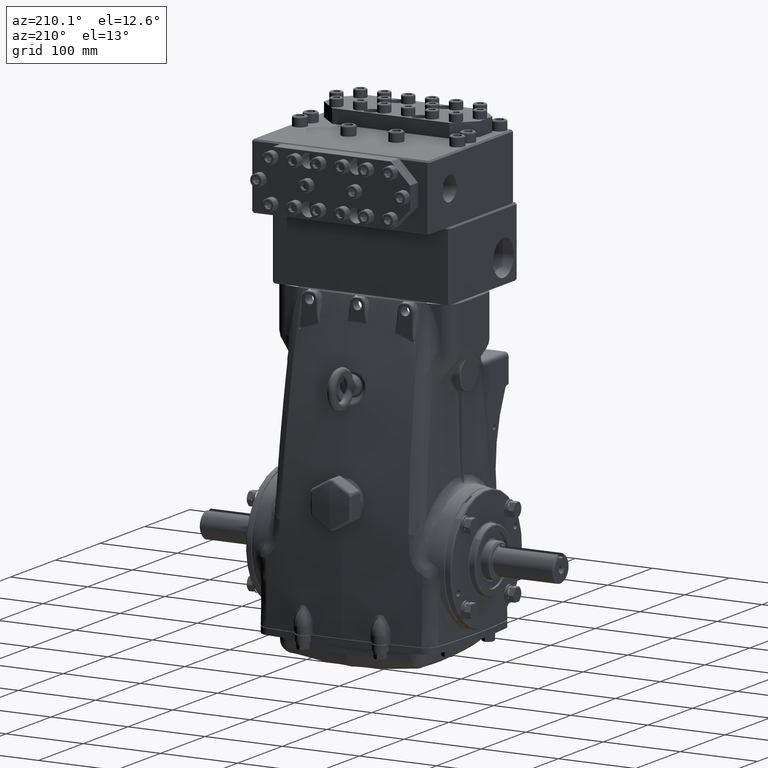
[diagram: clean part render]
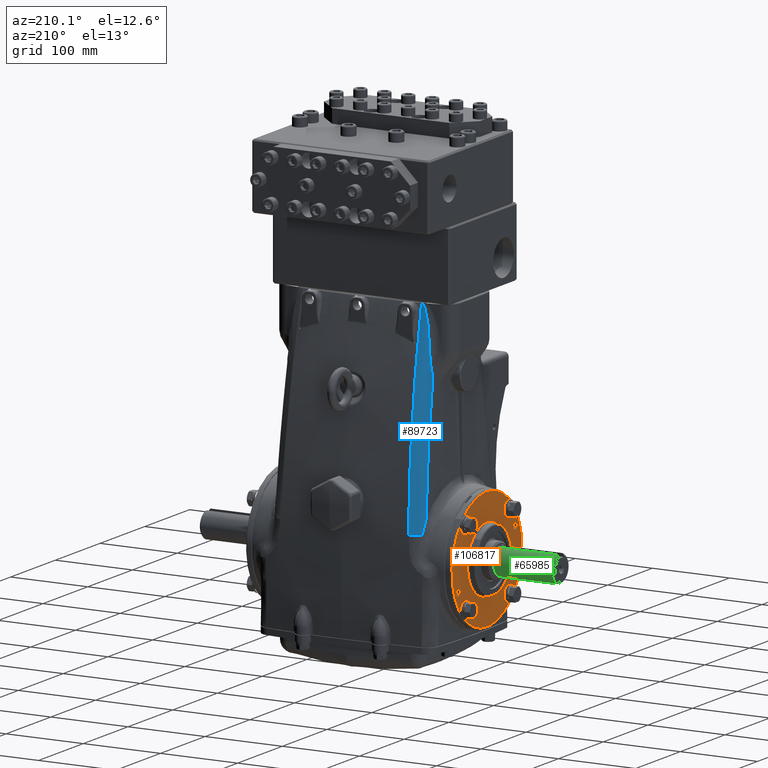
[diagram: same view with three faces highlighted in distinct colors, each labeled with its STEP entity id]
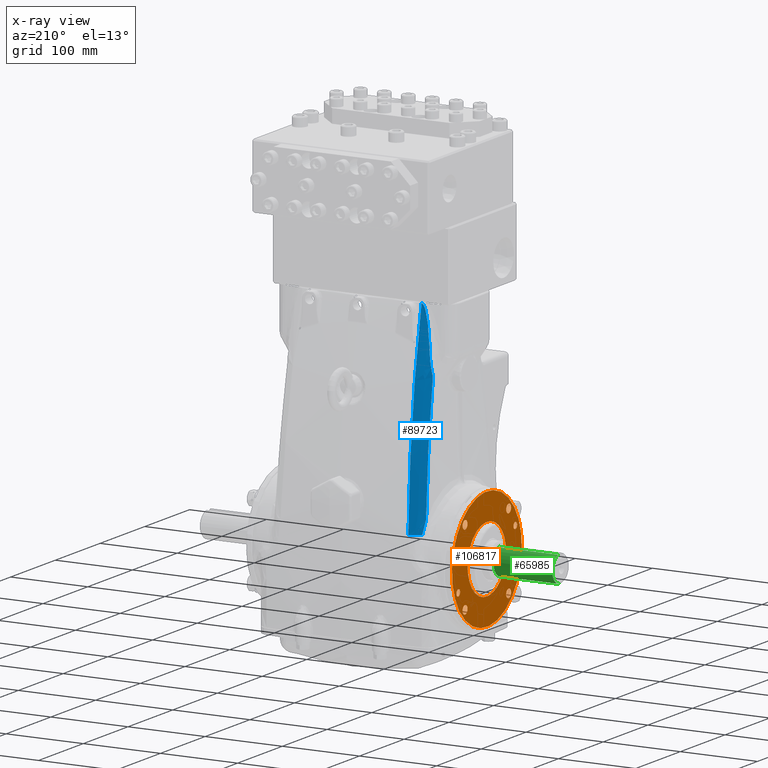
[diagram: x-ray of the same camera — body ghosted, the three highlighted faces saturated]
A machine part, auxiliary view with three faces highlighted in distinct colors.
The next image is the same camera in x-ray (body ghosted, the three faces saturated) — at least one of them is partly hidden behind the body in this view.
Their STEP definitions:

[orange] entity #106817 — the highlighted planar face has unit normal (-1, -0, 0).
#804 = DIRECTION ( 'NONE',  ( 0.0000000000000000000, -0.7071067811865471286, 0.7071067811865477948 ) ) ;
#1506 = CARTESIAN_POINT ( 'NONE',  ( -5.246062992125984259, -4.156730640558441200E-17, 2.958535915340194190E-16 ) ) ;
#2109 = EDGE_CURVE ( 'NONE', #28454, #15340, #17525, .T. ) ;
#2210 = DIRECTION ( 'NONE',  ( -1.000000000000000000, -1.279769191153750031E-16, 9.737501798821864473E-31 ) ) ;
#2635 = CARTESIAN_POINT ( 'NONE',  ( -5.246062992125984259, -1.920880626057946960, -1.920880626057941409 ) ) ;
#2925 = DIRECTION ( 'NONE',  ( 0.0000000000000000000, -0.7071067811865481278, -0.7071067811865469066 ) ) ;
#3266 = CARTESIAN_POINT ( 'NONE',  ( -5.246062992125984259, -1.920880626057946960, -1.920880626057941409 ) ) ;
#3403 = CIRCLE ( 'NONE', #70161, 0.2165354330708661734 ) ;
#3529 = EDGE_CURVE ( 'NONE', #4650, #96536, #28784, .T. ) ;
#4650 = VERTEX_POINT ( 'NONE', #30916 ) ;
#4719 = EDGE_LOOP ( 'NONE', ( #6420, #29071 ) ) ;
#5205 = FACE_BOUND ( 'NONE', #4719, .T. ) ;
#6420 = ORIENTED_EDGE ( 'NONE', *, *, #111992, .T. ) ;
#6918 = CIRCLE ( 'NONE', #73669, 0.2165354330708663400 ) ;
#6955 = EDGE_LOOP ( 'NONE', ( #107050, #95743 ) ) ;
#7168 = CIRCLE ( 'NONE', #73911, 0.2165354330708663400 ) ;
#8872 = CARTESIAN_POINT ( 'NONE',  ( -5.246062992125986035, 2.073994299149522824, 2.073994299149517051 ) ) ;
#8875 = AXIS2_PLACEMENT_3D ( 'NONE', #117281, #35553, #71939 ) ;
#8948 = EDGE_CURVE ( 'NONE', #96536, #4650, #6918, .T. ) ;
#9081 = CARTESIAN_POINT ( 'NONE',  ( -5.246062992125984259, -1.767766952966366878, 2.073994299149521936 ) ) ;
#10647 = CIRCLE ( 'NONE', #77366, 0.1648818897637792658 ) ;
#11830 = DIRECTION ( 'NONE',  ( -1.000000000000000000, -3.748357177353093439E-17, 9.049334734184479589E-17 ) ) ;
#12172 = VERTEX_POINT ( 'NONE', #13431 ) ;
#13431 = CARTESIAN_POINT ( 'NONE',  ( -5.246062992125984259, -2.073994299149522380, -2.073994299149516607 ) ) ;
#14326 = AXIS2_PLACEMENT_3D ( 'NONE', #60149, #96526, #14734 ) ;
#14707 = EDGE_CURVE ( 'NONE', #30645, #97522, #68366, .T. ) ;
#14734 = DIRECTION ( 'NONE',  ( 9.049334734184335376E-17, -0.7071067811865484609, -0.7071067811865465735 ) ) ;
#14987 = CARTESIAN_POINT ( 'NONE',  ( -5.246062992125984259, -2.073994299149517939, 1.767766952966371541 ) ) ;
#15182 = DIRECTION ( 'NONE',  ( 0.0000000000000000000, -0.7071067811865481278, -0.7071067811865469066 ) ) ;
#15340 = VERTEX_POINT ( 'NONE', #99316 ) ;
#16073 = CIRCLE ( 'NONE', #82814, 0.2165354330708661734 ) ;
#16920 = AXIS2_PLACEMENT_3D ( 'NONE', #87697, #33388, #69792 ) ;
#17525 = CIRCLE ( 'NONE', #68984, 1.692913385826771977 ) ;
#18326 = EDGE_LOOP ( 'NONE', ( #73035, #28832 ) ) ;
#19021 = AXIS2_PLACEMENT_3D ( 'NONE', #84001, #2210, #38665 ) ;
#20911 = DIRECTION ( 'NONE',  ( -1.000000000000000000, -1.279769191153750031E-16, 9.737501798821864473E-31 ) ) ;
#22176 = CARTESIAN_POINT ( 'NONE',  ( -5.246062992125986035, 1.920880626057947405, 1.920880626057941853 ) ) ;
#22765 = EDGE_LOOP ( 'NONE', ( #26493, #104686 ) ) ;
#23732 = PLANE ( 'NONE',  #14326 ) ;
#23838 = DIRECTION ( 'NONE',  ( -1.000000000000000000, -1.279769191153750031E-16, 9.737501798821864473E-31 ) ) ;
#24370 = ORIENTED_EDGE ( 'NONE', *, *, #101395, .T. ) ;
#25496 = AXIS2_PLACEMENT_3D ( 'NONE', #105577, #23838, #60260 ) ;
#26493 = ORIENTED_EDGE ( 'NONE', *, *, #81560, .F. ) ;
#28235 = EDGE_CURVE ( 'NONE', #41123, #66631, #107773, .T. ) ;
#28454 = VERTEX_POINT ( 'NONE', #79857 ) ;
#28784 = CIRCLE ( 'NONE', #80265, 0.2165354330708663400 ) ;
#28832 = ORIENTED_EDGE ( 'NONE', *, *, #78271, .F. ) ;
#29071 = ORIENTED_EDGE ( 'NONE', *, *, #2109, .T. ) ;
#29176 = DIRECTION ( 'NONE',  ( 0.0000000000000000000, -0.7071067811865463515, 0.7071067811865487940 ) ) ;
#29509 = CARTESIAN_POINT ( 'NONE',  ( -5.246062992125984259, -1.920880626057942520, 1.920880626057946960 ) ) ;
#30645 = VERTEX_POINT ( 'NONE', #49304 ) ;
#30916 = CARTESIAN_POINT ( 'NONE',  ( -5.246062992125986035, 2.073994299149517051, -1.767766952966372207 ) ) ;
#32688 = FACE_BOUND ( 'NONE', #18326, .T. ) ;
#33178 = VERTEX_POINT ( 'NONE', #14987 ) ;
#33388 = DIRECTION ( 'NONE',  ( -1.000000000000000000, -3.748357177353093439E-17, 9.049334734184479589E-17 ) ) ;
#35553 = DIRECTION ( 'NONE',  ( 1.000000000000000000, 1.279769191153750031E-16, -9.737501798821864473E-31 ) ) ;
#36031 = DIRECTION ( 'NONE',  ( 1.000000000000000000, 1.279769191153750031E-16, -9.737501798821864473E-31 ) ) ;
#37826 = ORIENTED_EDGE ( 'NONE', *, *, #3529, .F. ) ;
#37953 = DIRECTION ( 'NONE',  ( -1.000000000000000000, -1.279769191153750031E-16, 9.737501798821864473E-31 ) ) ;
#38665 = DIRECTION ( 'NONE',  ( 0.0000000000000000000, -0.7071067811865484609, -0.7071067811865465735 ) ) ;
#39088 = DIRECTION ( 'NONE',  ( -1.000000000000000000, -1.279769191153750031E-16, 9.737501798821864473E-31 ) ) ;
#39706 = DIRECTION ( 'NONE',  ( -1.000000000000000000, -1.279769191153750031E-16, 9.737501798821864473E-31 ) ) ;
#40826 = AXIS2_PLACEMENT_3D ( 'NONE', #3266, #39706, #76088 ) ;
#41123 = VERTEX_POINT ( 'NONE', #47963 ) ;
#41642 = FACE_BOUND ( 'NONE', #107563, .T. ) ;
#42494 = VERTEX_POINT ( 'NONE', #99110 ) ;
#44412 = AXIS2_PLACEMENT_3D ( 'NONE', #1506, #37953, #74334 ) ;
#46161 = CARTESIAN_POINT ( 'NONE',  ( -5.246062992125984259, -2.509751485955854733, 1.039573103668955278 ) ) ;
#47963 = CARTESIAN_POINT ( 'NONE',  ( -5.246062992125984259, -2.626340588302675805, 1.156162206015776350 ) ) ;
#48253 = DIRECTION ( 'NONE',  ( 0.0000000000000000000, -0.7071067811865471286, 0.7071067811865477948 ) ) ;
#48297 = CARTESIAN_POINT ( 'NONE',  ( -5.246062992125984259, -1.920880626057942520, 1.920880626057946960 ) ) ;
#49232 = AXIS2_PLACEMENT_3D ( 'NONE', #74531, #110915, #29176 ) ;
#49304 = CARTESIAN_POINT ( 'NONE',  ( -5.246062992125986035, 2.626340588302674917, -1.156162206015776128 ) ) ;
#51384 = VERTEX_POINT ( 'NONE', #103632 ) ;
#51757 = EDGE_CURVE ( 'NONE', #12172, #51384, #16073, .T. ) ;
#53010 = ORIENTED_EDGE ( 'NONE', *, *, #61429, .T. ) ;
#56357 = AXIS2_PLACEMENT_3D ( 'NONE', #93624, #11830, #48253 ) ;
#57332 = DIRECTION ( 'NONE',  ( 0.0000000000000000000, -0.7071067811865481278, -0.7071067811865469066 ) ) ;
#58606 = DIRECTION ( 'NONE',  ( -1.000000000000000000, -1.279769191153750031E-16, 9.737501798821864473E-31 ) ) ;
#59359 = AXIS2_PLACEMENT_3D ( 'NONE', #48297, #84727, #2925 ) ;
#60149 = CARTESIAN_POINT ( 'NONE',  ( -5.246062992125984259, 1.141392835773562764, 1.141392835773559877 ) ) ;
#60260 = DIRECTION ( 'NONE',  ( 0.0000000000000000000, -0.7071067811865486830, -0.7071067811865461294 ) ) ;
#60377 = CIRCLE ( 'NONE', #8875, 1.692913385826771977 ) ;
#60587 = CARTESIAN_POINT ( 'NONE',  ( -5.246062992125986035, 1.920880626057941409, -1.920880626057947405 ) ) ;
#60666 = CARTESIAN_POINT ( 'NONE',  ( -5.246062992125984259, -2.393162383609034105, 0.9229840013221340955 ) ) ;
#61429 = EDGE_CURVE ( 'NONE', #76835, #93587, #70528, .T. ) ;
#65933 = DIRECTION ( 'NONE',  ( -1.000000000000000000, -1.279769191153750031E-16, 9.737501798821864473E-31 ) ) ;
#66631 = VERTEX_POINT ( 'NONE', #60666 ) ;
#68161 = CARTESIAN_POINT ( 'NONE',  ( -5.246062992125986035, 1.767766952966365768, -2.073994299149522824 ) ) ;
#68366 = CIRCLE ( 'NONE', #16920, 0.1648818897637790437 ) ;
#68984 = AXIS2_PLACEMENT_3D ( 'NONE', #117767, #36031, #72424 ) ;
#69092 = FACE_BOUND ( 'NONE', #6955, .T. ) ;
#69238 = ORIENTED_EDGE ( 'NONE', *, *, #8948, .F. ) ;
#69792 = DIRECTION ( 'NONE',  ( 0.0000000000000000000, -0.7071067811865463515, 0.7071067811865487940 ) ) ;
#70161 = AXIS2_PLACEMENT_3D ( 'NONE', #22176, #58606, #94974 ) ;
#70528 = CIRCLE ( 'NONE', #19021, 3.070866141732283339 ) ;
#71939 = DIRECTION ( 'NONE',  ( 0.0000000000000000000, -0.7071067811865485719, -0.7071067811865465735 ) ) ;
#72424 = DIRECTION ( 'NONE',  ( 0.0000000000000000000, -0.7071067811865485719, -0.7071067811865465735 ) ) ;
#73035 = ORIENTED_EDGE ( 'NONE', *, *, #51757, .F. ) ;
#73669 = AXIS2_PLACEMENT_3D ( 'NONE', #60587, #96975, #15182 ) ;
#73911 = AXIS2_PLACEMENT_3D ( 'NONE', #29509, #65933, #102336 ) ;
#74334 = DIRECTION ( 'NONE',  ( 0.0000000000000000000, -0.7071067811865484609, -0.7071067811865465735 ) ) ;
#74356 = CARTESIAN_POINT ( 'NONE',  ( -5.246062992125984259, -2.171430272935070072, -2.171430272935063854 ) ) ;
#74531 = CARTESIAN_POINT ( 'NONE',  ( -5.246062992125986035, 2.509751485955853845, -1.039573103668955056 ) ) ;
#75464 = DIRECTION ( 'NONE',  ( 0.0000000000000000000, -0.7071067811865486830, -0.7071067811865461294 ) ) ;
#76088 = DIRECTION ( 'NONE',  ( 0.0000000000000000000, -0.7071067811865486830, -0.7071067811865461294 ) ) ;
#76455 = VERTEX_POINT ( 'NONE', #9081 ) ;
#76835 = VERTEX_POINT ( 'NONE', #108628 ) ;
#76923 = CIRCLE ( 'NONE', #25496, 0.2165354330708661734 ) ;
#77366 = AXIS2_PLACEMENT_3D ( 'NONE', #46161, #82593, #804 ) ;
#77631 = EDGE_CURVE ( 'NONE', #97991, #42494, #76923, .T. ) ;
#78030 = FACE_BOUND ( 'NONE', #86134, .T. ) ;
#78271 = EDGE_CURVE ( 'NONE', #51384, #12172, #92272, .T. ) ;
#79857 = CARTESIAN_POINT ( 'NONE',  ( -5.246062992125984259, 1.197070535079590048, 1.197070535079587383 ) ) ;
#80265 = AXIS2_PLACEMENT_3D ( 'NONE', #102677, #20911, #57332 ) ;
#80626 = CIRCLE ( 'NONE', #44412, 3.070866141732283339 ) ;
#81560 = EDGE_CURVE ( 'NONE', #33178, #76455, #110796, .T. ) ;
#81634 = ORIENTED_EDGE ( 'NONE', *, *, #28235, .F. ) ;
#82593 = DIRECTION ( 'NONE',  ( -1.000000000000000000, -3.748357177353093439E-17, 9.049334734184479589E-17 ) ) ;
#82814 = AXIS2_PLACEMENT_3D ( 'NONE', #2635, #39088, #75464 ) ;
#83594 = EDGE_LOOP ( 'NONE', ( #69238, #37826 ) ) ;
#84001 = CARTESIAN_POINT ( 'NONE',  ( -5.246062992125984259, -4.156730640558441200E-17, 2.958535915340194190E-16 ) ) ;
#84086 = EDGE_LOOP ( 'NONE', ( #24370, #53010 ) ) ;
#84727 = DIRECTION ( 'NONE',  ( -1.000000000000000000, -1.279769191153750031E-16, 9.737501798821864473E-31 ) ) ;
#86134 = EDGE_LOOP ( 'NONE', ( #97871, #115158 ) ) ;
#86994 = FACE_OUTER_BOUND ( 'NONE', #84086, .T. ) ;
#87697 = CARTESIAN_POINT ( 'NONE',  ( -5.246062992125986035, 2.509751485955853845, -1.039573103668955056 ) ) ;
#88922 = ORIENTED_EDGE ( 'NONE', *, *, #89591, .F. ) ;
#89591 = EDGE_CURVE ( 'NONE', #66631, #41123, #10647, .T. ) ;
#92272 = CIRCLE ( 'NONE', #40826, 0.2165354330708661734 ) ;
#93587 = VERTEX_POINT ( 'NONE', #74356 ) ;
#93624 = CARTESIAN_POINT ( 'NONE',  ( -5.246062992125984259, -2.509751485955854733, 1.039573103668955278 ) ) ;
#94974 = DIRECTION ( 'NONE',  ( 0.0000000000000000000, -0.7071067811865486830, -0.7071067811865461294 ) ) ;
#95338 = EDGE_CURVE ( 'NONE', #97522, #30645, #100725, .T. ) ;
#95743 = ORIENTED_EDGE ( 'NONE', *, *, #77631, .F. ) ;
#96526 = DIRECTION ( 'NONE',  ( -1.000000000000000000, -1.279769191153749784E-16, 1.010728034814421376E-30 ) ) ;
#96536 = VERTEX_POINT ( 'NONE', #68161 ) ;
#96975 = DIRECTION ( 'NONE',  ( -1.000000000000000000, -1.279769191153750031E-16, 9.737501798821864473E-31 ) ) ;
#97522 = VERTEX_POINT ( 'NONE', #113510 ) ;
#97871 = ORIENTED_EDGE ( 'NONE', *, *, #95338, .F. ) ;
#97991 = VERTEX_POINT ( 'NONE', #8872 ) ;
#99110 = CARTESIAN_POINT ( 'NONE',  ( -5.246062992125986035, 1.767766952966371985, 1.767766952966366878 ) ) ;
#99316 = CARTESIAN_POINT ( 'NONE',  ( -5.246062992125984259, -1.197070535079590270, -1.197070535079586717 ) ) ;
#100725 = CIRCLE ( 'NONE', #49232, 0.1648818897637790437 ) ;
#101395 = EDGE_CURVE ( 'NONE', #93587, #76835, #80626, .T. ) ;
#102336 = DIRECTION ( 'NONE',  ( 0.0000000000000000000, -0.7071067811865481278, -0.7071067811865469066 ) ) ;
#102677 = CARTESIAN_POINT ( 'NONE',  ( -5.246062992125986035, 1.920880626057941409, -1.920880626057947405 ) ) ;
#103632 = CARTESIAN_POINT ( 'NONE',  ( -5.246062992125984259, -1.767766952966371319, -1.767766952966366434 ) ) ;
#104686 = ORIENTED_EDGE ( 'NONE', *, *, #113269, .F. ) ;
#105467 = FACE_BOUND ( 'NONE', #22765, .T. ) ;
#105577 = CARTESIAN_POINT ( 'NONE',  ( -5.246062992125986035, 1.920880626057947405, 1.920880626057941853 ) ) ;
#106817 = ADVANCED_FACE ( 'NONE', ( #86994, #5205, #41642, #78030, #114417, #32688, #69092, #105467 ), #23732, .T. ) ;
#107050 = ORIENTED_EDGE ( 'NONE', *, *, #113660, .F. ) ;
#107563 = EDGE_LOOP ( 'NONE', ( #81634, #88922 ) ) ;
#107773 = CIRCLE ( 'NONE', #56357, 0.1648818897637792658 ) ;
#108628 = CARTESIAN_POINT ( 'NONE',  ( -5.246062992125984259, 2.171430272935069627, 2.171430272935065187 ) ) ;
#110796 = CIRCLE ( 'NONE', #59359, 0.2165354330708663400 ) ;
#110915 = DIRECTION ( 'NONE',  ( -1.000000000000000000, -3.748357177353093439E-17, 9.049334734184479589E-17 ) ) ;
#111992 = EDGE_CURVE ( 'NONE', #15340, #28454, #60377, .T. ) ;
#113269 = EDGE_CURVE ( 'NONE', #76455, #33178, #7168, .T. ) ;
#113510 = CARTESIAN_POINT ( 'NONE',  ( -5.246062992125986035, 2.393162383609033217, -0.9229840013221337625 ) ) ;
#113660 = EDGE_CURVE ( 'NONE', #42494, #97991, #3403, .T. ) ;
#114417 = FACE_BOUND ( 'NONE', #83594, .T. ) ;
#115158 = ORIENTED_EDGE ( 'NONE', *, *, #14707, .F. ) ;
#117281 = CARTESIAN_POINT ( 'NONE',  ( -5.246062992125984259, -4.156730640558441200E-17, 2.958535915340194190E-16 ) ) ;
#117767 = CARTESIAN_POINT ( 'NONE',  ( -5.246062992125984259, -4.156730640558441200E-17, 2.958535915340194190E-16 ) ) ;

[blue] entity #89723 — the highlighted face is a freeform B-spline surface patch.
#354 = CARTESIAN_POINT ( 'NONE',  ( -3.801213099687899444, 2.841866375676329604, 2.709332421064478247 ) ) ;
#3129 = CARTESIAN_POINT ( 'NONE',  ( -3.047062988844523534, 1.942112879583546281, 11.75850216152274363 ) ) ;
#3709 = CARTESIAN_POINT ( 'NONE',  ( -3.624739795667941245, 2.361846785260556025, 9.657226260257358419 ) ) ;
#4317 = CARTESIAN_POINT ( 'NONE',  ( -3.733375874080055556, 2.496822600370382617, 5.768929328260283818 ) ) ;
#4568 = CARTESIAN_POINT ( 'NONE',  ( -3.644514689806643393, 2.131245168979943649, 8.848770191558882559 ) ) ;
#4897 = CARTESIAN_POINT ( 'NONE',  ( -3.269204732900452104, 3.494166244084205619, 1.549803905489430367 ) ) ;
#5416 = CARTESIAN_POINT ( 'NONE',  ( -3.425113512321849463, 2.026531792189807835, 10.72117684414497951 ) ) ;
#6006 = CARTESIAN_POINT ( 'NONE',  ( -3.144611588856334183, 1.953722050217701511, 11.64100215362414659 ) ) ;
#6746 = CARTESIAN_POINT ( 'NONE',  ( -3.216296056407198733, 3.322383220422969519, 3.684119343499719257 ) ) ;
#8913 = B_SPLINE_CURVE_WITH_KNOTS ( 'NONE', 3,
 ( #38625, #75008, #111387, #29631 ),
 .UNSPECIFIED., .F., .F.,
 ( 4, 4 ),
 ( 0.0000000000000000000, 0.001285064076274404152 ),
 .UNSPECIFIED. ) ;
#9279 = CARTESIAN_POINT ( 'NONE',  ( -3.753557971363301160, 2.623800068678024289, 4.808583868586544519 ) ) ;
#11904 = CARTESIAN_POINT ( 'NONE',  ( -3.814269082362508279, 2.881727563546267135, 2.183157301090169256 ) ) ;
#12661 = CARTESIAN_POINT ( 'NONE',  ( -3.617881291539023714, 2.273791004135345517, 10.07883757417355319 ) ) ;
#13241 = CARTESIAN_POINT ( 'NONE',  ( -3.724749659922824474, 2.436103823054936335, 6.191136171432662039 ) ) ;
#13499 = CARTESIAN_POINT ( 'NONE',  ( -3.676183625752012851, 2.074507989343169712, 8.534897784484202887 ) ) ;
#13828 = CARTESIAN_POINT ( 'NONE',  ( -3.246661546152605826, 3.440174841299046271, 2.409381110722794705 ) ) ;
#14097 = CARTESIAN_POINT ( 'NONE',  ( -3.269204732900450772, 3.494166244084205619, 1.549803905489431921 ) ) ;
#14352 = CARTESIAN_POINT ( 'NONE',  ( -3.475132884461884952, 2.056109810165644536, 10.39221283459856338 ) ) ;
#14534 = EDGE_CURVE ( 'NONE', #79535, #51367, #106567, .T. ) ;
#14952 = CARTESIAN_POINT ( 'NONE',  ( -3.196248785558728489, 1.957521553395842551, 11.56183124994849543 ) ) ;
#14991 = CARTESIAN_POINT ( 'NONE',  ( -3.542766596368535748, 2.108245540889408076, 9.814064409686812596 ) ) ;
#15019 = VERTEX_POINT ( 'NONE', #14097 ) ;
#15712 = CARTESIAN_POINT ( 'NONE',  ( -3.257994996955968503, 3.467318692098095845, 1.977233875776326810 ) ) ;
#16303 = CARTESIAN_POINT ( 'NONE',  ( -3.057369498427757737, 2.057451332273736444, 11.28228488240600136 ) ) ;
#18254 = CARTESIAN_POINT ( 'NONE',  ( -3.700236916683070199, 2.241993115511200063, 7.419026472001160499 ) ) ;
#19687 = ORIENTED_EDGE ( 'NONE', *, *, #110279, .F. ) ;
#20889 = CARTESIAN_POINT ( 'NONE',  ( -3.792405264419058231, 3.064612692970520857, 1.764133578097811794 ) ) ;
#21650 = CARTESIAN_POINT ( 'NONE',  ( -3.604048377092111455, 2.088550987447082452, 10.91983584963829834 ) ) ;
#21933 = ORIENTED_EDGE ( 'NONE', *, *, #71973, .F. ) ;
#22238 = CARTESIAN_POINT ( 'NONE',  ( -3.699400011502169239, 2.239784669858119859, 7.455433125177638232 ) ) ;
#22500 = EDGE_CURVE ( 'NONE', #42635, #28937, #36317, .T. ) ;
#22818 = CARTESIAN_POINT ( 'NONE',  ( -3.225786521989106870, 3.367115606732822730, 3.268402680746357980 ) ) ;
#23083 = CARTESIAN_POINT ( 'NONE',  ( -3.580799902365598086, 2.142989470956519593, 9.407484235152326235 ) ) ;
#23361 = CARTESIAN_POINT ( 'NONE',  ( -3.542766596368535748, 2.108245540889408076, 9.814064409686812596 ) ) ;
#23954 = CARTESIAN_POINT ( 'NONE',  ( -3.247854053815110387, 1.965231277512680785, 11.44703742217719089 ) ) ;
#23991 = CARTESIAN_POINT ( 'NONE',  ( -3.576149117424309853, 2.139323488232271586, 9.457729532381188520 ) ) ;
#24546 = CARTESIAN_POINT ( 'NONE',  ( -3.058952848731955498, 1.955623167342798618, 11.69858645062687863 ) ) ;
#24860 = DIRECTION ( 'NONE',  ( -0.02584747050126739651, 0.06270016655278089213, -0.9976976482797480505 ) ) ;
#25299 = CARTESIAN_POINT ( 'NONE',  ( -3.091790677973859314, 2.424351262851354605, 9.608981028187290718 ) ) ;
#28937 = VERTEX_POINT ( 'NONE', #112408 ) ;
#29197 = VERTEX_POINT ( 'NONE', #31707 ) ;
#29631 = CARTESIAN_POINT ( 'NONE',  ( -3.576149117424309853, 2.139323488232271586, 9.457729532381188520 ) ) ;
#30606 = CARTESIAN_POINT ( 'NONE',  ( -3.597071034874167683, 1.991304745253442698, 11.33939218619141975 ) ) ;
#31196 = CARTESIAN_POINT ( 'NONE',  ( -3.683218887657213170, 2.090051777215203632, 8.295105779658376477 ) ) ;
#31707 = CARTESIAN_POINT ( 'NONE',  ( -3.576149117424309853, 2.139323488232271586, 9.457729532381188520 ) ) ;
#31785 = CARTESIAN_POINT ( 'NONE',  ( -3.196430448770180011, 3.229208018188942653, 4.553310141910483999 ) ) ;
#31813 =( BOUNDED_SURFACE ( )  B_SPLINE_SURFACE ( 3, 2, ( 
 ( #3129, #39578, #75956 ),
 ( #112341, #30606, #67021 ),
 ( #103408, #21650, #58068 ),
 ( #94452, #12661, #49086 ),
 ( #85506, #3709, #40166 ),
 ( #76552, #112928, #31196 ),
 ( #67603, #103997, #22238 ),
 ( #58660, #95031, #13241 ),
 ( #49667, #86096, #4317 ),
 ( #40753, #77128, #113511 ),
 ( #31785, #68181, #104568 ),
 ( #22818, #59241, #95624 ),
 ( #13828, #50267, #86677 ),
 ( #4897, #41340, #77723 ) ),
 .UNSPECIFIED., .F., .F., .F. ) 
 B_SPLINE_SURFACE_WITH_KNOTS ( ( 4, 2, 2, 2, 2, 2, 4 ),
 ( 3, 3 ),
 ( 0.3419978113029756850, 0.3744830089578065069, 0.4069682066126373288, 0.4719386019222990281, 0.5044237995771299055, 0.5369089972319607273, 0.6018793925416223711 ),
 ( 0.0000000000000000000, 1.000000000000000000 ),
 .UNSPECIFIED. ) 
 GEOMETRIC_REPRESENTATION_ITEM ( )  RATIONAL_B_SPLINE_SURFACE ( (
 ( 1.000000000000000000, 0.7560130559632651792, 1.000000000000000000),
 ( 1.000000000000000000, 0.7571492924045932771, 1.000000000000000000),
 ( 1.000000000000000000, 0.7582354962214225003, 1.000000000000000000),
 ( 1.000000000000000000, 0.7603087553690203171, 1.000000000000000000),
 ( 1.000000000000000000, 0.7612961270030141891, 1.000000000000000000),
 ( 1.000000000000000000, 0.7641083035491569309, 1.000000000000000000),
 ( 1.000000000000000000, 0.7657817902121620834, 1.000000000000000000),
 ( 1.000000000000000000, 0.7679959464944710046, 1.000000000000000000),
 ( 1.000000000000000000, 0.7686845463808132939, 1.000000000000000000),
 ( 1.000000000000000000, 0.7699625865603482167, 1.000000000000000000),
 ( 1.000000000000000000, 0.7705521760810135623, 1.000000000000000000),
 ( 1.000000000000000000, 0.7721734963203804591, 1.000000000000000000),
 ( 1.000000000000000000, 0.7730579457102991769, 1.000000000000000000),
 ( 1.000000000000000000, 0.7737454532319997247, 1.000000000000000000) ) ) 
 REPRESENTATION_ITEM ( '' )  SURFACE ( )  );
#32039 = CARTESIAN_POINT ( 'NONE',  ( -3.611175073036743566, 2.149335404892715129, 9.127704501144831895 ) ) ;
#32914 = CARTESIAN_POINT ( 'NONE',  ( -3.323539555675845136, 1.984003420254962569, 11.20907162170097315 ) ) ;
#33219 = ORIENTED_EDGE ( 'NONE', *, *, #35995, .F. ) ;
#33503 = CARTESIAN_POINT ( 'NONE',  ( -3.098228102935181472, 1.953479448419664699, 11.68356088856600650 ) ) ;
#33907 = ORIENTED_EDGE ( 'NONE', *, *, #96592, .T. ) ;
#34256 = CARTESIAN_POINT ( 'NONE',  ( -3.160157785945038711, 3.011595640940678997, 6.234294448528373778 ) ) ;
#35995 = EDGE_CURVE ( 'NONE', #15019, #28937, #70531, .T. ) ;
#36013 = B_SPLINE_CURVE_WITH_KNOTS ( 'NONE', 3,
 ( #95297, #13499, #49932, #86352, #4568, #40999, #77387, #113774, #32039, #68434, #104829, #23083 ),
 .UNSPECIFIED., .F., .F.,
 ( 4, 2, 2, 2, 2, 4 ),
 ( 0.0000000000000000000, 0.006105293281051692687, 0.01221058656210338537, 0.01526323320262923389, 0.01831587984315508413, 0.02442117312420670483 ),
 .UNSPECIFIED. ) ;
#36317 = B_SPLINE_CURVE_WITH_KNOTS ( 'NONE', 3,
 ( #23361, #59781, #96156, #14352, #50801, #87217, #5416, #41857, #78250, #114637, #32914, #69317, #105687, #23954, #60370, #96750, #14952, #51399, #87811, #6006, #42463, #78852, #115233, #33503, #69912, #106269, #24546, #60944 ),
 .UNSPECIFIED., .F., .F.,
 ( 4, 2, 2, 2, 2, 2, 2, 2, 2, 2, 2, 2, 2, 4 ),
 ( 0.0000000000000000000, 0.01272267982654311930, 0.01908401973981459221, 0.02544535965308606512, 0.03180669956635753803, 0.03816803947962901095, 0.04134870943626467454, 0.04452937939290033814, 0.04611971437121817341, 0.04771004934953601562, 0.04850521683869494366, 0.04930038432785386476, 0.05009555181701278587, 0.05089071930617170003 ),
 .UNSPECIFIED. ) ;
#36797 = CARTESIAN_POINT ( 'NONE',  ( -3.814269082362508279, 2.881727563546267135, 2.183157301090169256 ) ) ;
#38625 = CARTESIAN_POINT ( 'NONE',  ( -3.580799902365598086, 2.142989470956519593, 9.407484235152326235 ) ) ;
#39578 = CARTESIAN_POINT ( 'NONE',  ( -3.589918111933611211, 1.889644707873581631, 11.75727767587871853 ) ) ;
#39795 = CARTESIAN_POINT ( 'NONE',  ( -3.814269082362508279, 2.881727563546267135, 2.183157301090169256 ) ) ;
#40166 = CARTESIAN_POINT ( 'NONE',  ( -3.658804494557767573, 1.837281659631256669, 9.549821321188925793 ) ) ;
#40753 = CARTESIAN_POINT ( 'NONE',  ( -3.186966253152299089, 3.178518602334162946, 4.981063251276674819 ) ) ;
#40999 = CARTESIAN_POINT ( 'NONE',  ( -3.630274747985410499, 2.141864256455619397, 8.967991098027294328 ) ) ;
#41340 = CARTESIAN_POINT ( 'NONE',  ( -3.781998062819874828, 3.439989269677553807, 1.559684158456561720 ) ) ;
#41857 = CARTESIAN_POINT ( 'NONE',  ( -3.395550305680832714, 2.012001240785476153, 10.88484654828793019 ) ) ;
#42463 = CARTESIAN_POINT ( 'NONE',  ( -3.137753295990094227, 1.953489988434667923, 11.64905505856249945 ) ) ;
#42635 = VERTEX_POINT ( 'NONE', #93655 ) ;
#43202 = CARTESIAN_POINT ( 'NONE',  ( -3.196827980763150112, 3.231218854497723392, 4.535599982320241530 ) ) ;
#45710 = CARTESIAN_POINT ( 'NONE',  ( -3.764946817707797155, 2.685616327955809624, 4.284649282652233104 ) ) ;
#48495 = FACE_OUTER_BOUND ( 'NONE', #109711, .T. ) ;
#48663 = CIRCLE ( 'NONE', #115382, 0.6299212598425197873 ) ;
#49086 = CARTESIAN_POINT ( 'NONE',  ( -3.650641123888094697, 1.748344757290344109, 9.967172917615114258 ) ) ;
#49667 = CARTESIAN_POINT ( 'NONE',  ( -3.168538870737483748, 3.067713329856495807, 5.835469309587299591 ) ) ;
#49932 = CARTESIAN_POINT ( 'NONE',  ( -3.669592097120425223, 2.092360205566928588, 8.612894015470624609 ) ) ;
#50267 = CARTESIAN_POINT ( 'NONE',  ( -3.760632177187649638, 3.386144853829423873, 2.418613819507564155 ) ) ;
#50801 = CARTESIAN_POINT ( 'NONE',  ( -3.463598773325417657, 2.048677792663028185, 10.47456393592918467 ) ) ;
#51367 = VERTEX_POINT ( 'NONE', #39795 ) ;
#51399 = CARTESIAN_POINT ( 'NONE',  ( -3.175331520119966999, 1.955497972035430410, 11.59829125815897122 ) ) ;
#52153 = CARTESIAN_POINT ( 'NONE',  ( -3.247199614774384013, 3.435775041202732805, 2.404314508298649233 ) ) ;
#52760 = CARTESIAN_POINT ( 'NONE',  ( -3.048361850561355890, 1.956657500317994680, 11.69856850100573276 ) ) ;
#54711 = CARTESIAN_POINT ( 'NONE',  ( -3.720962081858113724, 2.409200364965605079, 6.377039946395764325 ) ) ;
#55834 = CARTESIAN_POINT ( 'NONE',  ( -3.580799902365598086, 2.142989470956519593, 9.407484235152326235 ) ) ;
#57311 = CARTESIAN_POINT ( 'NONE',  ( -3.807797924443275583, 2.977543044408082817, 1.978319764446337281 ) ) ;
#58068 = CARTESIAN_POINT ( 'NONE',  ( -3.634034561642262684, 1.561231582636855686, 10.79967266109354540 ) ) ;
#58660 = CARTESIAN_POINT ( 'NONE',  ( -3.159573981068620085, 3.007584296943471625, 6.262205731746902870 ) ) ;
#59241 = CARTESIAN_POINT ( 'NONE',  ( -3.741269416928316716, 3.313199642596796668, 3.276727043862713185 ) ) ;
#59781 = CARTESIAN_POINT ( 'NONE',  ( -3.526110223087379758, 2.093381093767648693, 9.979598701209544842 ) ) ;
#60370 = CARTESIAN_POINT ( 'NONE',  ( -3.232443174415196019, 1.962397510778287391, 11.48619949557370568 ) ) ;
#60410 = CARTESIAN_POINT ( 'NONE',  ( -3.565811391544678965, 2.129228831142555123, 9.576604896241546427 ) ) ;
#60944 = CARTESIAN_POINT ( 'NONE',  ( -3.048361850561355890, 1.956657500317994680, 11.69856850100573276 ) ) ;
#61268 = DIRECTION ( 'NONE',  ( 0.0000000000000000000, 0.9980310921419518477, 0.06272112178479140321 ) ) ;
#61702 = CARTESIAN_POINT ( 'NONE',  ( -3.083322352733954830, 2.337157510713007369, 10.02836769579707266 ) ) ;
#62346 = CARTESIAN_POINT ( 'NONE',  ( -3.770580920303959083, 3.142302170779629922, 1.540680269885116749 ) ) ;
#63644 = CARTESIAN_POINT ( 'NONE',  ( -3.680044730410442888, 2.053194663346450621, 8.457199941519622399 ) ) ;
#66273 = CARTESIAN_POINT ( 'NONE',  ( -3.770580920303959083, 3.142302170779629922, 1.540680269885116749 ) ) ;
#67021 = CARTESIAN_POINT ( 'NONE',  ( -3.625590179549488479, 1.463042293424011708, 11.21488468228997881 ) ) ;
#67603 = CARTESIAN_POINT ( 'NONE',  ( -3.133196056143836117, 2.813169425873078389, 7.540067853943227760 ) ) ;
#68181 = CARTESIAN_POINT ( 'NONE',  ( -3.714694376460200065, 3.175668598951369326, 4.558885180942064075 ) ) ;
#68434 = CARTESIAN_POINT ( 'NONE',  ( -3.597355062208697163, 2.150247036588929905, 9.247534800881268779 ) ) ;
#69317 = CARTESIAN_POINT ( 'NONE',  ( -3.288433655448587345, 1.974316455701514039, 11.32870975276895820 ) ) ;
#69912 = CARTESIAN_POINT ( 'NONE',  ( -3.089106361407769175, 1.953774575474547914, 11.68886016557627094 ) ) ;
#70531 = B_SPLINE_CURVE_WITH_KNOTS ( 'NONE', 3,
 ( #97502, #15712, #52153, #88551, #6746, #43202, #79606, #115990, #34256, #70657, #107015, #25299, #61702, #98099, #16303, #52760 ),
 .UNSPECIFIED., .F., .F.,
 ( 4, 2, 2, 2, 2, 2, 2, 4 ),
 ( 0.0000000000000000000, 0.03264243258107458329, 0.06528486516214915270, 0.09792729774322372904, 0.1305697303242982776, 0.1958545954864474858, 0.2284970280675220899, 0.2611394606485967218 ),
 .UNSPECIFIED. ) ;
#70657 = CARTESIAN_POINT ( 'NONE',  ( -3.133913998702548387, 2.819013614672498669, 7.504584520848139206 ) ) ;
#71973 = EDGE_CURVE ( 'NONE', #89794, #51367, #113998, .T. ) ;
#75008 = CARTESIAN_POINT ( 'NONE',  ( -3.579157275893888990, 2.141968797427053151, 9.424238806829373871 ) ) ;
#75956 = CARTESIAN_POINT ( 'NONE',  ( -3.616874770236321979, 1.360230636718298802, 11.62905843821257434 ) ) ;
#76552 = CARTESIAN_POINT ( 'NONE',  ( -3.116313128745268557, 2.664885723971083920, 8.388751505512237472 ) ) ;
#77128 = CARTESIAN_POINT ( 'NONE',  ( -3.706231425358892384, 3.125056899071798178, 4.986101976194560415 ) ) ;
#77387 = CARTESIAN_POINT ( 'NONE',  ( -3.625453803538600805, 2.144548388560649776, 9.007910192479023692 ) ) ;
#77723 = CARTESIAN_POINT ( 'NONE',  ( -3.830823294112212896, 2.927496912473777968, 1.528741570307350139 ) ) ;
#78250 = CARTESIAN_POINT ( 'NONE',  ( -3.379483495355244838, 2.004827407082619306, 10.96636951802282844 ) ) ;
#78852 = CARTESIAN_POINT ( 'NONE',  ( -3.123111626546777764, 1.953234862241764569, 11.66408944877292164 ) ) ;
#79535 = VERTEX_POINT ( 'NONE', #62346 ) ;
#79606 = CARTESIAN_POINT ( 'NONE',  ( -3.187411999549493391, 3.180972947435750431, 4.960797234820099710 ) ) ;
#82138 = CARTESIAN_POINT ( 'NONE',  ( -3.788773721439311348, 2.794649350203434857, 3.235045082078513712 ) ) ;
#85291 = ORIENTED_EDGE ( 'NONE', *, *, #111811, .T. ) ;
#85506 = CARTESIAN_POINT ( 'NONE',  ( -3.090823749522751296, 2.414561174761125972, 9.656936045481318232 ) ) ;
#86096 = CARTESIAN_POINT ( 'NONE',  ( -3.689971348518871874, 3.014427983727832050, 5.839391051182142967 ) ) ;
#86352 = CARTESIAN_POINT ( 'NONE',  ( -3.653754965434140356, 2.120718746964249224, 8.769831607828354691 ) ) ;
#86677 = CARTESIAN_POINT ( 'NONE',  ( -3.808892059467134050, 2.872960910714121407, 2.379199177741197602 ) ) ;
#87217 = CARTESIAN_POINT ( 'NONE',  ( -3.438590167990758673, 2.033891319479999460, 10.63902130253098832 ) ) ;
#87811 = CARTESIAN_POINT ( 'NONE',  ( -3.163954216183606505, 1.954624748665022116, 11.61605272439057757 ) ) ;
#87869 = CARTESIAN_POINT ( 'NONE',  ( -3.680044730410442888, 2.053194663346450621, 8.457199941519622399 ) ) ;
#88469 = EDGE_CURVE ( 'NONE', #89794, #109272, #36013, .T. ) ;
#88551 = CARTESIAN_POINT ( 'NONE',  ( -3.226349643378954912, 3.363306529552681390, 3.257775733343591718 ) ) ;
#89481 = ORIENTED_EDGE ( 'NONE', *, *, #22500, .T. ) ;
#89723 = ADVANCED_FACE ( 'NONE', ( #48495 ), #31813, .T. ) ;
#89794 = VERTEX_POINT ( 'NONE', #87869 ) ;
#91079 = CARTESIAN_POINT ( 'NONE',  ( -3.731566814817936173, 2.485603129191050975, 5.854716524150104462 ) ) ;
#93655 = CARTESIAN_POINT ( 'NONE',  ( -3.542766596368535748, 2.108245540889408076, 9.814064409686812596 ) ) ;
#93698 = CARTESIAN_POINT ( 'NONE',  ( -3.812953688536298458, 2.930920300305807746, 2.082303641742098588 ) ) ;
#94452 = CARTESIAN_POINT ( 'NONE',  ( -3.082298445646426188, 2.326484231684772919, 10.07876845336315874 ) ) ;
#95031 = CARTESIAN_POINT ( 'NONE',  ( -3.682171762108213287, 2.954367736563306313, 6.265654440970484629 ) ) ;
#95297 = CARTESIAN_POINT ( 'NONE',  ( -3.680044730410442888, 2.053194663346450621, 8.457199941519622399 ) ) ;
#95624 = CARTESIAN_POINT ( 'NONE',  ( -3.788649543497682348, 2.799174602996818084, 3.229106078057604634 ) ) ;
#96156 = CARTESIAN_POINT ( 'NONE',  ( -3.507493284119141297, 2.078444153699458674, 10.14487202249964604 ) ) ;
#96592 = EDGE_CURVE ( 'NONE', #29197, #42635, #99878, .T. ) ;
#96750 = CARTESIAN_POINT ( 'NONE',  ( -3.205752225059756544, 1.958674480447315069, 11.54314204520084708 ) ) ;
#96783 = CARTESIAN_POINT ( 'NONE',  ( -3.554708010239511662, 2.118902273423434401, 9.695388305858859468 ) ) ;
#97502 = CARTESIAN_POINT ( 'NONE',  ( -3.269204732900450772, 3.494166244084205619, 1.549803905489431921 ) ) ;
#98099 = CARTESIAN_POINT ( 'NONE',  ( -3.066112386415988933, 2.153713693125371531, 10.86498774305070469 ) ) ;
#99878 = B_SPLINE_CURVE_WITH_KNOTS ( 'NONE', 3,
 ( #23991, #60410, #96783, #14991 ),
 .UNSPECIFIED., .F., .F.,
 ( 4, 4 ),
 ( 0.0000000000000000000, 0.009124745447547868635 ),
 .UNSPECIFIED. ) ;
#100041 = CARTESIAN_POINT ( 'NONE',  ( -3.690115058314008323, 2.151184730222527097, 7.938748593144839383 ) ) ;
#100944 = ORIENTED_EDGE ( 'NONE', *, *, #14534, .T. ) ;
#102658 = CARTESIAN_POINT ( 'NONE',  ( -3.782174297275330499, 3.105067683978651960, 1.653932639205494493 ) ) ;
#103408 = CARTESIAN_POINT ( 'NONE',  ( -3.064961872081308325, 2.141177123060190812, 10.92020775159233459 ) ) ;
#103997 = CARTESIAN_POINT ( 'NONE',  ( -3.659516729909861432, 2.760006172627041288, 7.543276944098860959 ) ) ;
#104568 = CARTESIAN_POINT ( 'NONE',  ( -3.760269245680015526, 2.659905205168439757, 4.500378107675504502 ) ) ;
#104829 = CARTESIAN_POINT ( 'NONE',  ( -3.588644919235312702, 2.147864103866095498, 9.327466105824086640 ) ) ;
#105687 = CARTESIAN_POINT ( 'NONE',  ( -3.275843467519632846, 1.971181975992472912, 11.36837621607076798 ) ) ;
#106269 = CARTESIAN_POINT ( 'NONE',  ( -3.069401841915796680, 1.954845582119939529, 11.69643858961699934 ) ) ;
#106567 = B_SPLINE_CURVE_WITH_KNOTS ( 'NONE', 3,
 ( #66273, #102658, #20889, #57311, #93698, #11904 ),
 .UNSPECIFIED., .F., .F.,
 ( 4, 2, 4 ),
 ( 0.0000000000000000000, 0.5000000000000000000, 1.000000000000000000 ),
 .UNSPECIFIED. ) ;
#106578 = CARTESIAN_POINT ( 'NONE',  ( -3.203942594157655588, 2.868976490605358531, 1.508823190593775010 ) ) ;
#107015 = CARTESIAN_POINT ( 'NONE',  ( -3.117120338754920006, 2.672174463103909048, 8.348257340075480926 ) ) ;
#109272 = VERTEX_POINT ( 'NONE', #55834 ) ;
#109711 = EDGE_LOOP ( 'NONE', ( #89481, #33219, #19687, #100944, #21933, #117300, #85291, #33907 ) ) ;
#110279 = EDGE_CURVE ( 'NONE', #79535, #15019, #48663, .T. ) ;
#111387 = CARTESIAN_POINT ( 'NONE',  ( -3.577605098274455830, 2.140745234908720818, 9.440986947469372836 ) ) ;
#111811 = EDGE_CURVE ( 'NONE', #109272, #29197, #8913, .T. ) ;
#112341 = CARTESIAN_POINT ( 'NONE',  ( -3.056149333729739404, 2.043934400726509448, 11.33987919838269320 ) ) ;
#112408 = CARTESIAN_POINT ( 'NONE',  ( -3.048361850561355890, 1.956657500317994680, 11.69856850100573276 ) ) ;
#112928 = CARTESIAN_POINT ( 'NONE',  ( -3.645454460734158353, 2.611704385282820340, 8.391559864438930205 ) ) ;
#113511 = CARTESIAN_POINT ( 'NONE',  ( -3.751134849788913872, 2.608716639390830760, 4.923591589836673776 ) ) ;
#113774 = CARTESIAN_POINT ( 'NONE',  ( -3.615903419059625534, 2.148282731123987155, 9.087771712523789347 ) ) ;
#113998 = B_SPLINE_CURVE_WITH_KNOTS ( 'NONE', 3,
 ( #63644, #100041, #18254, #54711, #91079, #9279, #45710, #82138, #354, #36797 ),
 .UNSPECIFIED., .F., .F.,
 ( 4, 2, 2, 2, 4 ),
 ( 0.08476750981346586888, 0.1249840975113978014, 0.1652006852093297340, 0.2054172729072616943, 0.2456338606051936269 ),
 .UNSPECIFIED. ) ;
#114637 = CARTESIAN_POINT ( 'NONE',  ( -3.343438491307865412, 1.990833437488416457, 11.12847261618671091 ) ) ;
#115233 = CARTESIAN_POINT ( 'NONE',  ( -3.115317381886163695, 1.953208774553340188, 11.67110744268335409 ) ) ;
#115382 = AXIS2_PLACEMENT_3D ( 'NONE', #106578, #24860, #61268 ) ;
#115990 = CARTESIAN_POINT ( 'NONE',  ( -3.169077725909747123, 3.071167649471457040, 5.810104169129147955 ) ) ;
#117300 = ORIENTED_EDGE ( 'NONE', *, *, #88469, .T. ) ;

[green] entity #65985 — the highlighted cylindrical surface (edge-blend (fillet) strip) has radius 17.5 mm, axis along (1, -0, -0).
#1559 = AXIS2_PLACEMENT_3D ( 'NONE', #61839, #98237, #16443 ) ;
#6944 = CIRCLE ( 'NONE', #73694, 0.6889763779527561249 ) ;
#9943 = VECTOR ( 'NONE', #35226, 39.37007874015748143 ) ;
#12473 = CARTESIAN_POINT ( 'NONE',  ( -8.986220472440942686, 1.247019192167489158E-16, -0.6889763779527559029 ) ) ;
#13517 = DIRECTION ( 'NONE',  ( 1.000000000000000000, -0.0000000000000000000, -0.0000000000000000000 ) ) ;
#13621 = CARTESIAN_POINT ( 'NONE',  ( -8.986220472440942686, 1.247019192167489158E-16, 2.958535915340133546E-16 ) ) ;
#16443 = DIRECTION ( 'NONE',  ( 0.0000000000000000000, 0.0000000000000000000, -1.000000000000000000 ) ) ;
#19765 = CARTESIAN_POINT ( 'NONE',  ( -6.011511536557696544, 0.1694728435551889068, 0.6678268948456239640 ) ) ;
#21136 = DIRECTION ( 'NONE',  ( -1.000000000000000000, -0.0000000000000000000, -0.0000000000000000000 ) ) ;
#22300 = ORIENTED_EDGE ( 'NONE', *, *, #89201, .T. ) ;
#25439 = CYLINDRICAL_SURFACE ( 'NONE', #1559, 0.6889763779527561249 ) ;
#26759 = ORIENTED_EDGE ( 'NONE', *, *, #115758, .T. ) ;
#27941 = VERTEX_POINT ( 'NONE', #42412 ) ;
#28713 = CARTESIAN_POINT ( 'NONE',  ( -6.059838529839572274, 0.1900524935405055182, 0.6622542245160498720 ) ) ;
#35226 = DIRECTION ( 'NONE',  ( 1.000000000000000000, -0.0000000000000000000, -0.0000000000000000000 ) ) ;
#37705 = CARTESIAN_POINT ( 'NONE',  ( -6.101584861905443802, 0.1968503937007876070, 0.6602562925688360007 ) ) ;
#39092 = VERTEX_POINT ( 'NONE', #41394 ) ;
#41394 = CARTESIAN_POINT ( 'NONE',  ( -8.986220472440942686, 0.1968503937007875793, 0.6602562925688360007 ) ) ;
#42412 = CARTESIAN_POINT ( 'NONE',  ( -6.112204724409446399, 0.1968503937007875793, 0.6602562925688360007 ) ) ;
#47012 = VERTEX_POINT ( 'NONE', #106315 ) ;
#50050 = DIRECTION ( 'NONE',  ( 1.000000000000000000, 0.0000000000000000000, 0.0000000000000000000 ) ) ;
#54042 = ORIENTED_EDGE ( 'NONE', *, *, #73542, .F. ) ;
#55224 = ORIENTED_EDGE ( 'NONE', *, *, #99735, .T. ) ;
#56189 = CARTESIAN_POINT ( 'NONE',  ( -6.002514865728548976, 0.1637955981153098872, 0.6692544603896189992 ) ) ;
#57558 = DIRECTION ( 'NONE',  ( 0.0000000000000000000, 0.0000000000000000000, -1.000000000000000000 ) ) ;
#58054 = VERTEX_POINT ( 'NONE', #65540 ) ;
#58931 = LINE ( 'NONE', #95310, #96367 ) ;
#59394 = AXIS2_PLACEMENT_3D ( 'NONE', #13621, #50050, #86475 ) ;
#61839 = CARTESIAN_POINT ( 'NONE',  ( -9.064960629921257507, 1.247019192167489158E-16, 2.958535915340133546E-16 ) ) ;
#63097 = ORIENTED_EDGE ( 'NONE', *, *, #108153, .T. ) ;
#65139 = CARTESIAN_POINT ( 'NONE',  ( -6.039756187563379619, 0.1833395160448448580, 0.6641439829184337951 ) ) ;
#65540 = CARTESIAN_POINT ( 'NONE',  ( -5.994094488188974168, 0.1574803149606301689, 0.6707372061968830401 ) ) ;
#65985 = ADVANCED_FACE ( 'NONE', ( #107158 ), #25439, .T. ) ;
#70403 = VERTEX_POINT ( 'NONE', #12473 ) ;
#73542 = EDGE_CURVE ( 'NONE', #70403, #47012, #80590, .T. ) ;
#73694 = AXIS2_PLACEMENT_3D ( 'NONE', #102898, #21136, #57558 ) ;
#74087 = CARTESIAN_POINT ( 'NONE',  ( -6.091069338741239569, 0.1959966182939283097, 0.6605125895253513013 ) ) ;
#80590 = LINE ( 'NONE', #116974, #9943 ) ;
#86475 = DIRECTION ( 'NONE',  ( 0.0000000000000000000, 8.881784197001252323E-16, 1.000000000000000000 ) ) ;
#89201 = EDGE_CURVE ( 'NONE', #39092, #27941, #58931, .T. ) ;
#91984 = CARTESIAN_POINT ( 'NONE',  ( -6.112204724409446399, 0.1968503937007875793, 0.6602562925688360007 ) ) ;
#92575 = CARTESIAN_POINT ( 'NONE',  ( -5.994094488188974168, 0.1574803149606301689, 0.6707372061968830401 ) ) ;
#95310 = CARTESIAN_POINT ( 'NONE',  ( -9.064960629921257507, 0.1968503937007875793, 0.6602562925688360007 ) ) ;
#96367 = VECTOR ( 'NONE', #13517, 39.37007874015748143 ) ;
#98237 = DIRECTION ( 'NONE',  ( 1.000000000000000000, -0.0000000000000000000, -0.0000000000000000000 ) ) ;
#99735 = EDGE_CURVE ( 'NONE', #70403, #39092, #110831, .T. ) ;
#101536 = CARTESIAN_POINT ( 'NONE',  ( -6.030096709648472775, 0.1792161730827915023, 0.6652784150168924437 ) ) ;
#102898 = CARTESIAN_POINT ( 'NONE',  ( -5.994094488188974168, 1.247019192167489158E-16, 2.958535915340133546E-16 ) ) ;
#106315 = CARTESIAN_POINT ( 'NONE',  ( -5.994094488188974168, 1.247019192167489158E-16, -0.6889763779527559029 ) ) ;
#107158 = FACE_OUTER_BOUND ( 'NONE', #116243, .T. ) ;
#108153 = EDGE_CURVE ( 'NONE', #58054, #47012, #6944, .T. ) ;
#110462 = CARTESIAN_POINT ( 'NONE',  ( -6.070242191542488897, 0.1926149650089243603, 0.6615066368213938786 ) ) ;
#110831 = CIRCLE ( 'NONE', #59394, 0.6889763779527561249 ) ;
#115758 = EDGE_CURVE ( 'NONE', #27941, #58054, #117308, .T. ) ;
#116243 = EDGE_LOOP ( 'NONE', ( #54042, #55224, #22300, #26759, #63097 ) ) ;
#116974 = CARTESIAN_POINT ( 'NONE',  ( -9.064960629921257507, 1.247019192167489158E-16, -0.6889763779527559029 ) ) ;
#117308 = B_SPLINE_CURVE_WITH_KNOTS ( 'NONE', 3,
 ( #91984, #37705, #74087, #110462, #28713, #65139, #101536, #19765, #56189, #92575 ),
 .UNSPECIFIED., .F., .F.,
 ( 4, 2, 2, 2, 4 ),
 ( 0.02357046022046372161, 0.02437403554017592705, 0.02517761085988813596, 0.02598118617960034488, 0.02678476149931255032 ),
 .UNSPECIFIED. ) ;